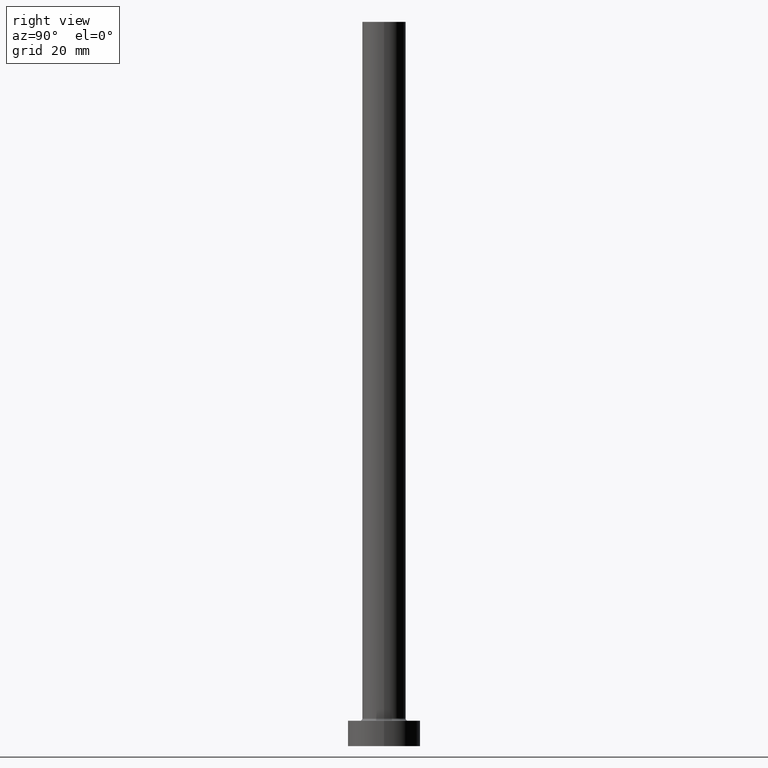
[diagram: clean part render]
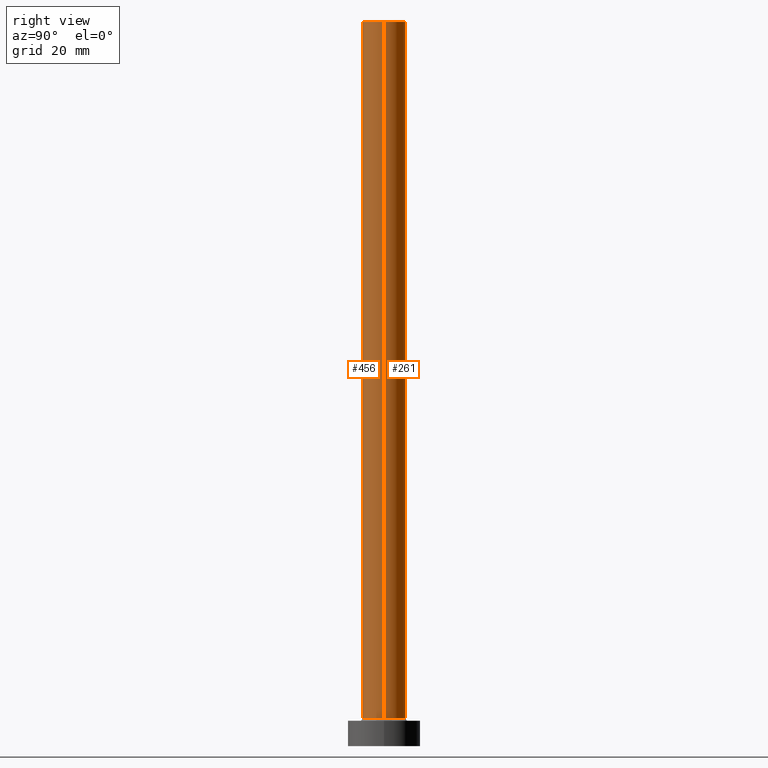
[diagram: same view with one multi-face feature highlighted, each face labeled with its STEP entity id]
A machine part, right view. The highlighted faces form ONE feature: a constant-radius fillet chain: 2 tangent blend faces with common blend radius 6 mm. The faces share edges in the B-rep.
Their STEP definitions:
[1] entity #456 (Cylinder):
#1 = DIRECTION ( 'NONE',  ( 1.000000000000000000, 0.000000000000000000, 0.000000000000000000 ) ) ;
#29 = DIRECTION ( 'NONE',  ( -0.000000000000000000, -0.000000000000000000, -1.000000000000000000 ) ) ;
#35 = ORIENTED_EDGE ( 'NONE', *, *, #288, .T. ) ;
#40 = CARTESIAN_POINT ( 'NONE',  ( 0.000000000000000000, 0.000000000000000000, 200.0000000000000000 ) ) ;
#42 = EDGE_CURVE ( 'NONE', #443, #45, #117, .T. ) ;
#45 = VERTEX_POINT ( 'NONE', #203 ) ;
#48 = EDGE_CURVE ( 'NONE', #207, #140, #145, .T. ) ;
#97 = AXIS2_PLACEMENT_3D ( 'NONE', #40, #245, #148 ) ;
#114 = CARTESIAN_POINT ( 'NONE',  ( -6.000000000000000888, 0.000000000000000000, 7.700000000000012612 ) ) ;
#117 = CIRCLE ( 'NONE', #138, 6.000000000000000888 ) ;
#128 = DIRECTION ( 'NONE',  ( -0.000000000000000000, -0.000000000000000000, -1.000000000000000000 ) ) ;
#138 = AXIS2_PLACEMENT_3D ( 'NONE', #238, #276, #1 ) ;
#140 = VERTEX_POINT ( 'NONE', #244 ) ;
#145 = CIRCLE ( 'NONE', #429, 6.000000000000000888 ) ;
#146 = VECTOR ( 'NONE', #29, 1000.000000000000000 ) ;
#148 = DIRECTION ( 'NONE',  ( -1.000000000000000000, 0.000000000000000000, 0.000000000000000000 ) ) ;
#164 = LINE ( 'NONE', #374, #306 ) ;
#194 = ORIENTED_EDGE ( 'NONE', *, *, #42, .T. ) ;
#201 = LINE ( 'NONE', #349, #146 ) ;
#203 = CARTESIAN_POINT ( 'NONE',  ( 6.000000000000000888, 7.347880794884120722E-16, 7.700000000000012612 ) ) ;
#207 = VERTEX_POINT ( 'NONE', #444 ) ;
#212 = CYLINDRICAL_SURFACE ( 'NONE', #97, 6.000000000000000888 ) ;
#221 = DIRECTION ( 'NONE',  ( 0.000000000000000000, 0.000000000000000000, 1.000000000000000000 ) ) ;
#238 = CARTESIAN_POINT ( 'NONE',  ( 0.000000000000000000, 0.000000000000000000, 7.700000000000012612 ) ) ;
#244 = CARTESIAN_POINT ( 'NONE',  ( 6.000000000000000888, 7.347880794884120722E-16, 200.0000000000000000 ) ) ;
#245 = DIRECTION ( 'NONE',  ( -0.000000000000000000, -0.000000000000000000, -1.000000000000000000 ) ) ;
#252 = FACE_OUTER_BOUND ( 'NONE', #296, .T. ) ;
#276 = DIRECTION ( 'NONE',  ( 0.000000000000000000, 0.000000000000000000, 1.000000000000000000 ) ) ;
#288 = EDGE_CURVE ( 'NONE', #207, #443, #164, .T. ) ;
#296 = EDGE_LOOP ( 'NONE', ( #302, #407, #35, #194 ) ) ;
#299 = DIRECTION ( 'NONE',  ( 1.000000000000000000, 0.000000000000000000, 0.000000000000000000 ) ) ;
#302 = ORIENTED_EDGE ( 'NONE', *, *, #434, .F. ) ;
#306 = VECTOR ( 'NONE', #128, 1000.000000000000000 ) ;
#349 = CARTESIAN_POINT ( 'NONE',  ( 6.000000000000000888, 7.347880794884120722E-16, 200.0000000000000000 ) ) ;
#351 = CARTESIAN_POINT ( 'NONE',  ( 0.000000000000000000, 0.000000000000000000, 200.0000000000000000 ) ) ;
#374 = CARTESIAN_POINT ( 'NONE',  ( -6.000000000000000888, 0.000000000000000000, 200.0000000000000000 ) ) ;
#407 = ORIENTED_EDGE ( 'NONE', *, *, #48, .F. ) ;
#429 = AXIS2_PLACEMENT_3D ( 'NONE', #351, #221, #299 ) ;
#434 = EDGE_CURVE ( 'NONE', #140, #45, #201, .T. ) ;
#443 = VERTEX_POINT ( 'NONE', #114 ) ;
#444 = CARTESIAN_POINT ( 'NONE',  ( -6.000000000000000888, 0.000000000000000000, 200.0000000000000000 ) ) ;
#456 = ADVANCED_FACE ( 'NONE', ( #252 ), #212, .T. ) ;
[2] entity #261 (Cylinder):
#29 = DIRECTION ( 'NONE',  ( -0.000000000000000000, -0.000000000000000000, -1.000000000000000000 ) ) ;
#33 = ORIENTED_EDGE ( 'NONE', *, *, #223, .F. ) ;
#39 = CARTESIAN_POINT ( 'NONE',  ( 0.000000000000000000, 0.000000000000000000, 200.0000000000000000 ) ) ;
#45 = VERTEX_POINT ( 'NONE', #203 ) ;
#82 = DIRECTION ( 'NONE',  ( 1.000000000000000000, 0.000000000000000000, 0.000000000000000000 ) ) ;
#95 = CYLINDRICAL_SURFACE ( 'NONE', #421, 6.000000000000000888 ) ;
#101 = ORIENTED_EDGE ( 'NONE', *, *, #288, .F. ) ;
#114 = CARTESIAN_POINT ( 'NONE',  ( -6.000000000000000888, 0.000000000000000000, 7.700000000000012612 ) ) ;
#128 = DIRECTION ( 'NONE',  ( -0.000000000000000000, -0.000000000000000000, -1.000000000000000000 ) ) ;
#130 = FACE_OUTER_BOUND ( 'NONE', #304, .T. ) ;
#140 = VERTEX_POINT ( 'NONE', #244 ) ;
#146 = VECTOR ( 'NONE', #29, 1000.000000000000000 ) ;
#152 = DIRECTION ( 'NONE',  ( 0.000000000000000000, 0.000000000000000000, 1.000000000000000000 ) ) ;
#154 = CARTESIAN_POINT ( 'NONE',  ( 0.000000000000000000, 0.000000000000000000, 7.700000000000012612 ) ) ;
#164 = LINE ( 'NONE', #374, #306 ) ;
#172 = EDGE_CURVE ( 'NONE', #45, #443, #319, .T. ) ;
#183 = DIRECTION ( 'NONE',  ( 1.000000000000000000, 0.000000000000000000, 0.000000000000000000 ) ) ;
#191 = AXIS2_PLACEMENT_3D ( 'NONE', #39, #408, #82 ) ;
#201 = LINE ( 'NONE', #349, #146 ) ;
#203 = CARTESIAN_POINT ( 'NONE',  ( 6.000000000000000888, 7.347880794884120722E-16, 7.700000000000012612 ) ) ;
#207 = VERTEX_POINT ( 'NONE', #444 ) ;
#223 = EDGE_CURVE ( 'NONE', #140, #207, #279, .T. ) ;
#227 = DIRECTION ( 'NONE',  ( -1.000000000000000000, 0.000000000000000000, 0.000000000000000000 ) ) ;
#244 = CARTESIAN_POINT ( 'NONE',  ( 6.000000000000000888, 7.347880794884120722E-16, 200.0000000000000000 ) ) ;
#261 = ADVANCED_FACE ( 'NONE', ( #130 ), #95, .T. ) ;
#279 = CIRCLE ( 'NONE', #191, 6.000000000000000888 ) ;
#288 = EDGE_CURVE ( 'NONE', #207, #443, #164, .T. ) ;
#304 = EDGE_LOOP ( 'NONE', ( #33, #450, #342, #101 ) ) ;
#306 = VECTOR ( 'NONE', #128, 1000.000000000000000 ) ;
#319 = CIRCLE ( 'NONE', #327, 6.000000000000000888 ) ;
#327 = AXIS2_PLACEMENT_3D ( 'NONE', #154, #152, #183 ) ;
#338 = CARTESIAN_POINT ( 'NONE',  ( 0.000000000000000000, 0.000000000000000000, 200.0000000000000000 ) ) ;
#342 = ORIENTED_EDGE ( 'NONE', *, *, #172, .T. ) ;
#349 = CARTESIAN_POINT ( 'NONE',  ( 6.000000000000000888, 7.347880794884120722E-16, 200.0000000000000000 ) ) ;
#374 = CARTESIAN_POINT ( 'NONE',  ( -6.000000000000000888, 0.000000000000000000, 200.0000000000000000 ) ) ;
#379 = DIRECTION ( 'NONE',  ( -0.000000000000000000, -0.000000000000000000, -1.000000000000000000 ) ) ;
#408 = DIRECTION ( 'NONE',  ( 0.000000000000000000, 0.000000000000000000, 1.000000000000000000 ) ) ;
#421 = AXIS2_PLACEMENT_3D ( 'NONE', #338, #379, #227 ) ;
#434 = EDGE_CURVE ( 'NONE', #140, #45, #201, .T. ) ;
#443 = VERTEX_POINT ( 'NONE', #114 ) ;
#444 = CARTESIAN_POINT ( 'NONE',  ( -6.000000000000000888, 0.000000000000000000, 200.0000000000000000 ) ) ;
#450 = ORIENTED_EDGE ( 'NONE', *, *, #434, .T. ) ;